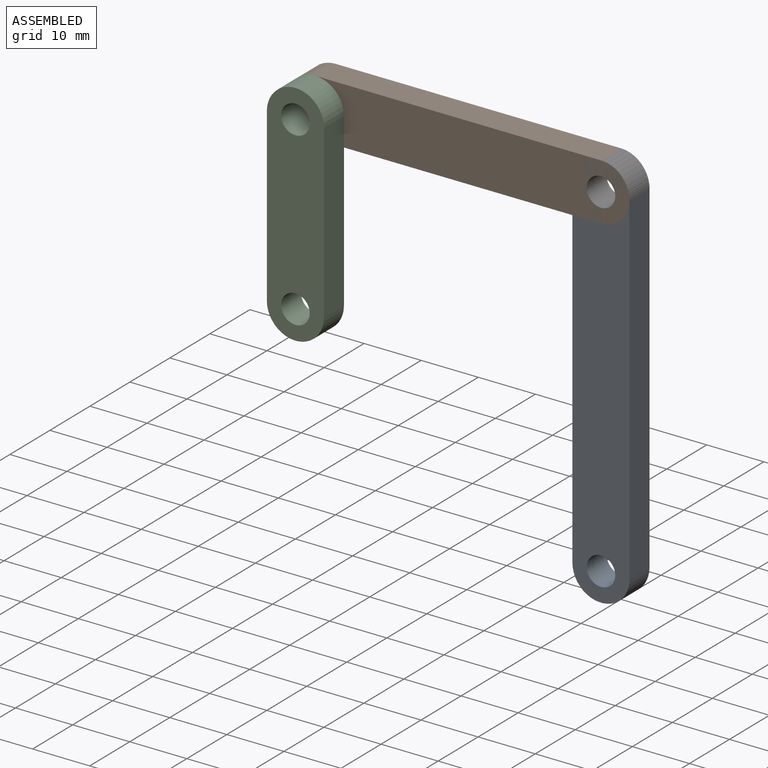
[diagram: assembled view]
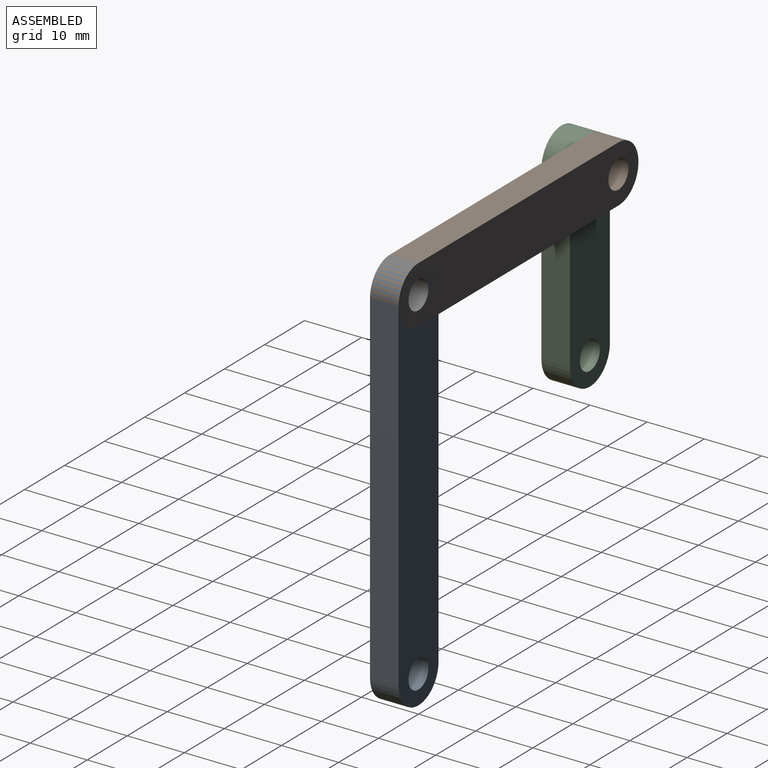
[diagram: assembled view, second angle]
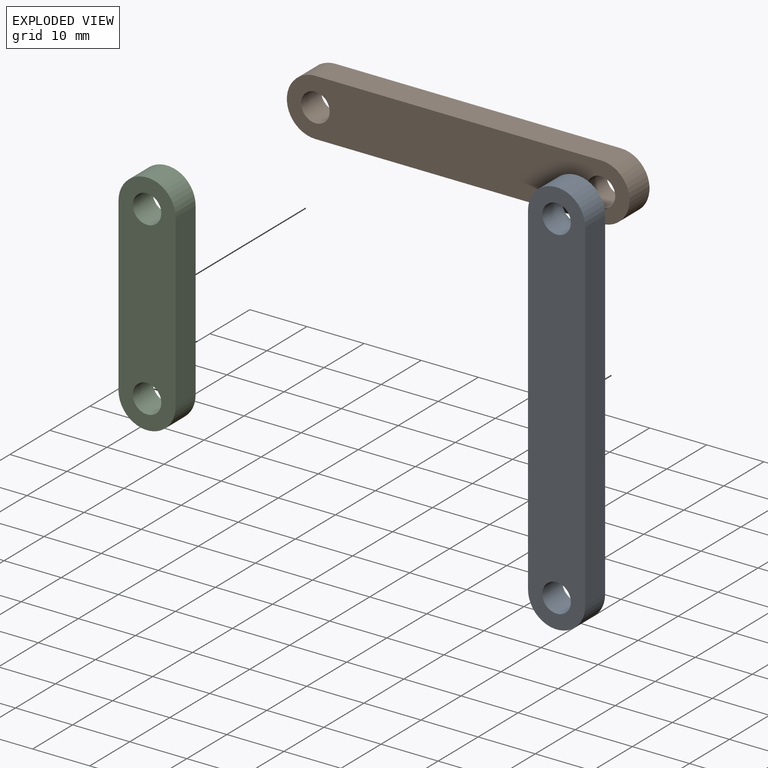
[diagram: exploded view]
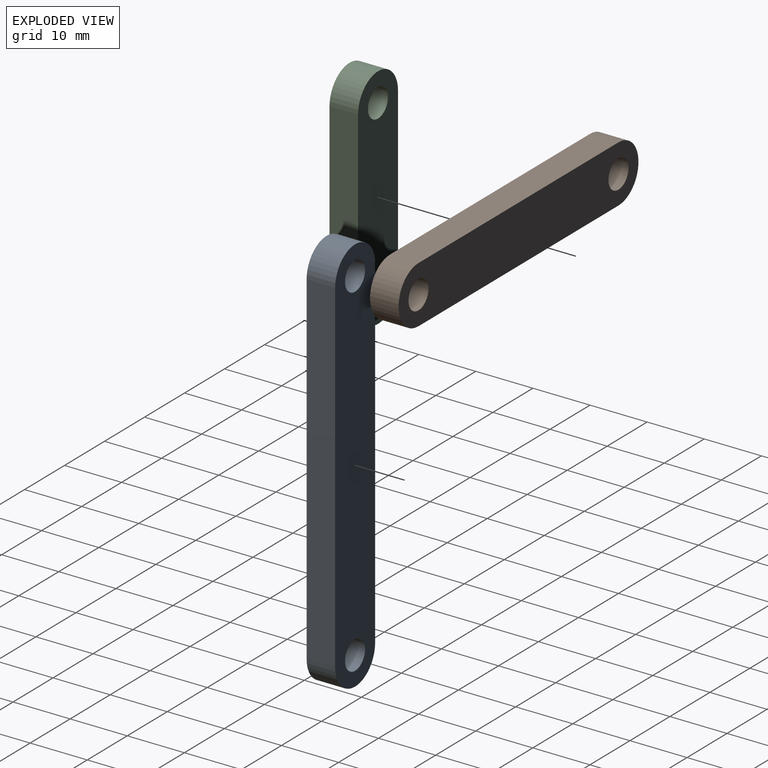
[diagram: exploded view, second angle]
ASSEMBLY  parts=3 mates=2
PART A: 8 faces, bbox 10x5x70 mm
  f0: plane 60x5mm, normal (1,0,0), area 300mm2, adj f1,f5,f6,f7
  f1: cylinder r=5mm len=10mm, axis (0,1,0), area 78.5mm2, adj f0,f2,f6,f7
  f2: plane 60x5mm, normal (-1,0,0), area 300mm2, adj f1,f5,f6,f7
  f3: cylinder r=2.5mm len=5mm, axis (0,1,0), area 78.5mm2, adj f6,f7
  f4: cylinder r=2.5mm len=5mm, axis (0,1,0), area 78.5mm2, adj f6,f7
  f5: cylinder r=5mm len=10mm, axis (0,1,0), area 78.5mm2, adj f0,f2,f6,f7
  f6: plane 70x10mm, normal (0,-1,0), area 639.3mm2, adj f0,f1,f2,f3,f4,f5
  f7: plane 70x10mm, normal (0,1,0), area 639.3mm2, adj f0,f1,f2,f3,f4,f5
PART B: 8 faces, bbox 10x5x60 mm
  f0: plane 50x5mm, normal (1,0,0), area 250mm2, adj f1,f5,f6,f7
  f1: cylinder r=5mm len=10mm, axis (0,1,0), area 78.5mm2, adj f0,f2,f6,f7
  f2: plane 50x5mm, normal (-1,0,0), area 250mm2, adj f1,f5,f6,f7
  f3: cylinder r=2.5mm len=5mm, axis (0,1,0), area 78.5mm2, adj f6,f7
  f4: cylinder r=2.5mm len=5mm, axis (0,1,0), area 78.5mm2, adj f6,f7
  f5: cylinder r=5mm len=10mm, axis (0,1,0), area 78.5mm2, adj f0,f2,f6,f7
  f6: plane 60x10mm, normal (0,-1,0), area 539.3mm2, adj f0,f1,f2,f3,f4,f5
  f7: plane 60x10mm, normal (0,1,0), area 539.3mm2, adj f0,f1,f2,f3,f4,f5
PART C: 8 faces, bbox 10x5x40 mm
  f0: plane 30x5mm, normal (1,0,0), area 150mm2, adj f1,f5,f6,f7
  f1: cylinder r=5mm len=10mm, axis (0,1,0), area 78.5mm2, adj f0,f2,f6,f7
  f2: plane 30x5mm, normal (-1,0,0), area 150mm2, adj f1,f5,f6,f7
  f3: cylinder r=2.5mm len=5mm, axis (0,1,0), area 78.5mm2, adj f6,f7
  f4: cylinder r=2.5mm len=5mm, axis (0,1,0), area 78.5mm2, adj f6,f7
  f5: cylinder r=5mm len=10mm, axis (0,1,0), area 78.5mm2, adj f0,f2,f6,f7
  f6: plane 40x10mm, normal (0,-1,0), area 339.3mm2, adj f0,f1,f2,f3,f4,f5
  f7: plane 40x10mm, normal (0,1,0), area 339.3mm2, adj f0,f1,f2,f3,f4,f5
PLACE A t=(50,10,-30)mm
PLACE B rot(axis=(0,-1,0),90deg) t=(50,10,30)mm
PLACE C t=(0,5,0)mm
MATE fastened B.f4 <-> A.f1  axis (0,-1,0) through (50,5,30)mm
MATE fastened B.f1 <-> C.f1  axis (0,-1,0) through (0,5,30)mm
